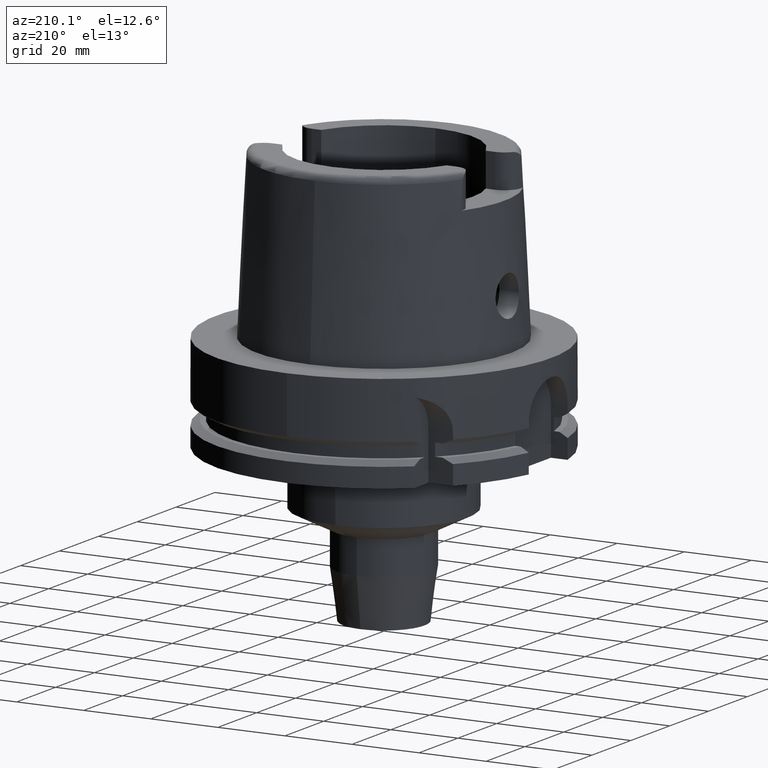
[diagram: clean part render]
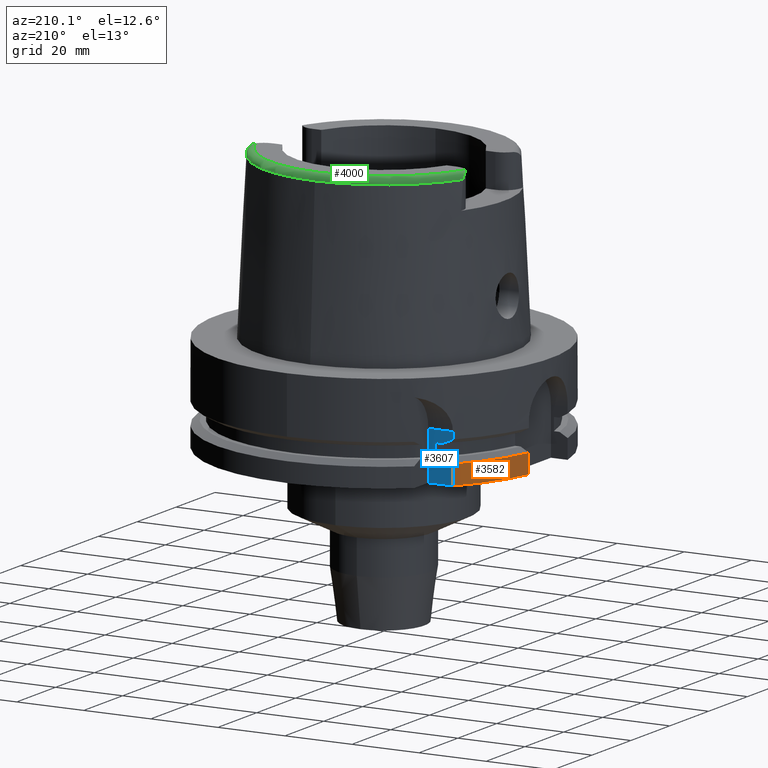
[diagram: same view with three faces highlighted in distinct colors, each labeled with its STEP entity id]
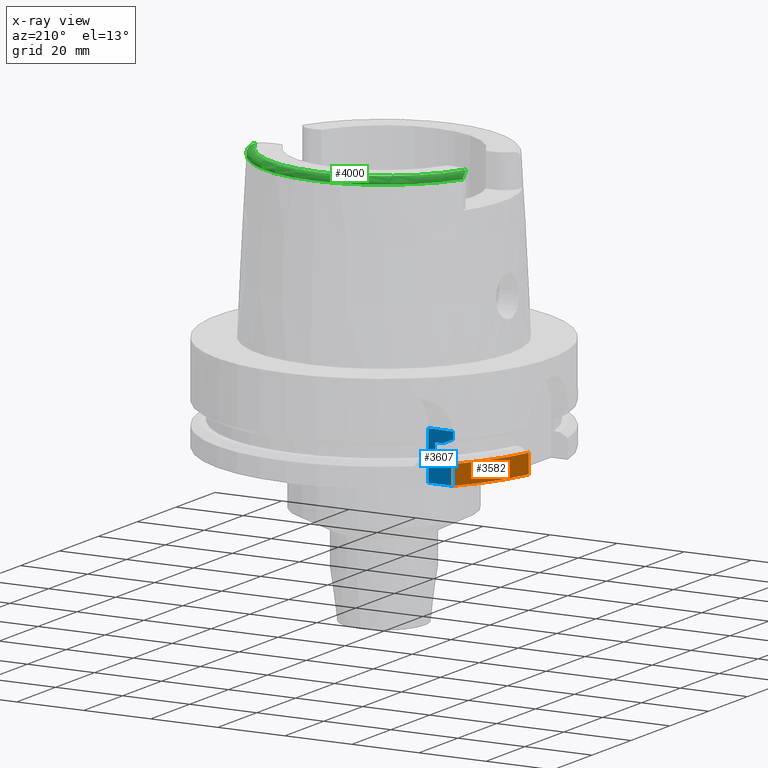
[diagram: x-ray of the same camera — body ghosted, the three highlighted faces saturated]
A machine part, auxiliary view with three faces highlighted in distinct colors.
The next image is the same camera in x-ray (body ghosted, the three faces saturated) — at least one of them is partly hidden behind the body in this view.
Their STEP definitions:

[orange] entity #3582 — the highlighted cylindrical surface (partial cylindrical patch) has radius 50 mm, axis along (0, 0, 1).
#1160=CARTESIAN_POINT('',(0.E0,0.E0,-2.9E1));
#1161=DIRECTION('',(0.E0,0.E0,1.E0));
#1162=DIRECTION('',(-7.765951326142E-1,6.3E-1,0.E0));
#1163=AXIS2_PLACEMENT_3D('',#1160,#1161,#1162);
#1413=DIRECTION('',(-1.164835666500E-7,-1.435883620959E-7,1.E0));
#1414=VECTOR('',#1413,5.752407739009E0);
#1415=CARTESIAN_POINT('',(-3.882975663071E1,3.15E1,-2.9E1));
#1416=LINE('',#1415,#1414);
#1420=DIRECTION('',(-8.399427413532E-14,0.E0,-1.E0));
#1421=VECTOR('',#1420,5.752404735809E0);
#1422=CARTESIAN_POINT('',(-4.898979485566E1,1.E1,-2.324759526419E1));
#1423=LINE('',#1422,#1421);
#2084=CARTESIAN_POINT('',(0.E0,0.E0,-2.324759526419E1));
#2085=DIRECTION('',(0.E0,0.E0,-1.E0));
#2086=DIRECTION('',(-9.797958971133E-1,2.E-1,0.E0));
#2087=AXIS2_PLACEMENT_3D('',#2084,#2085,#2086);
#2353=CARTESIAN_POINT('',(-3.882975663071E1,3.15E1,-2.9E1));
#2354=VERTEX_POINT('',#2353);
#2355=CARTESIAN_POINT('',(-4.898979485566E1,1.E1,-2.9E1));
#2356=VERTEX_POINT('',#2355);
#2399=CARTESIAN_POINT('',(-3.882975730077E1,3.149999917402E1,
-2.324759226099E1));
#2400=VERTEX_POINT('',#2399);
#2401=CARTESIAN_POINT('',(-4.898979485566E1,1.E1,-2.324759526419E1));
#2402=VERTEX_POINT('',#2401);
#3569=CARTESIAN_POINT('',(0.E0,0.E0,-8.125E1));
#3570=DIRECTION('',(0.E0,0.E0,1.E0));
#3571=DIRECTION('',(0.E0,1.E0,0.E0));
#3572=AXIS2_PLACEMENT_3D('',#3569,#3570,#3571);
#3573=CYLINDRICAL_SURFACE('',#3572,5.E1);
#3575=ORIENTED_EDGE('',*,*,#3574,.T.);
#3577=ORIENTED_EDGE('',*,*,#3576,.F.);
#3578=ORIENTED_EDGE('',*,*,#3549,.T.);
#3579=ORIENTED_EDGE('',*,*,#3341,.F.);
#3580=EDGE_LOOP('',(#3575,#3577,#3578,#3579));
#3581=FACE_OUTER_BOUND('',#3580,.F.);
#1164=CIRCLE('',#1163,5.E1);
#2088=CIRCLE('',#2087,5.E1);
#3341=EDGE_CURVE('',#2354,#2356,#1164,.T.);
#3549=EDGE_CURVE('',#2402,#2356,#1423,.T.);
#3574=EDGE_CURVE('',#2354,#2400,#1416,.T.);
#3576=EDGE_CURVE('',#2402,#2400,#2088,.T.);
#3582=ADVANCED_FACE('',(#3581),#3573,.T.);

[blue] entity #3607 — the highlighted planar face has unit normal (0, -1, 0).
#1153=DIRECTION('',(-1.E0,-4.798503851106E-14,0.E0));
#1154=VECTOR('',#1153,7.329756630709E0);
#1155=CARTESIAN_POINT('',(-3.15E1,3.15E1,-2.9E1));
#1156=LINE('',#1155,#1154);
#1413=DIRECTION('',(-1.164835666500E-7,-1.435883620959E-7,1.E0));
#1414=VECTOR('',#1413,5.752407739009E0);
#1415=CARTESIAN_POINT('',(-3.882975663071E1,3.15E1,-2.9E1));
#1416=LINE('',#1415,#1414);
#1427=DIRECTION('',(0.E0,0.E0,1.E0));
#1428=VECTOR('',#1427,1.436484140846E1);
#1429=CARTESIAN_POINT('',(-3.15E1,3.15E1,-2.9E1));
#1430=LINE('',#1429,#1428);
#1434=CARTESIAN_POINT('',(-3.882975730068E1,3.149999917413E1,
-1.675240773890E1));
#1435=CARTESIAN_POINT('',(-3.848478757235E1,3.149999917413E1,
-1.690708093013E1));
#1436=CARTESIAN_POINT('',(-3.779426518057E1,3.149999990405E1,
-1.721512476499E1));
#1437=CARTESIAN_POINT('',(-3.675645002481E1,3.150000157462E1,
-1.767260061493E1));
#1438=CARTESIAN_POINT('',(-3.606333280798E1,3.149999638985E1,
-1.797479206983E1));
#1439=CARTESIAN_POINT('',(-3.571643728548E1,3.149999638985E1,-1.8125E1));
#1444=DIRECTION('',(-9.999999999986E-1,-1.645545284965E-6,-9.229692154412E-14));
#1445=VECTOR('',#1444,2.194056706375E0);
#1446=CARTESIAN_POINT('',(-3.352238058372E1,3.15E1,-2.1875E1));
#1447=LINE('',#1446,#1445);
#1451=DIRECTION('',(9.999999718471E-1,4.798503716013E-14,2.372885901153E-4));
#1452=VECTOR('',#1451,7.329756837064E0);
#1453=CARTESIAN_POINT('',(-3.882975663071E1,3.15E1,-1.463689785921E1));
#1454=LINE('',#1453,#1452);
#1486=DIRECTION('',(3.166955095345E-7,3.903884141555E-7,9.999999999999E-1));
#1487=VECTOR('',#1486,2.115509879686E0);
#1488=CARTESIAN_POINT('',(-3.882975730068E1,3.149999917413E1,
-1.675240773890E1));
#1489=LINE('',#1488,#1487);
#2004=DIRECTION('',(-9.999999999986E-1,-1.645424013511E-6,9.391616597936E-14));
#2005=VECTOR('',#2004,2.194056701758E0);
#2006=CARTESIAN_POINT('',(-3.352238058372E1,3.15E1,-1.8125E1));
#2007=LINE('',#2006,#2005);
#2027=DIRECTION('',(0.E0,0.E0,1.E0));
#2028=VECTOR('',#2027,3.75E0);
#2029=CARTESIAN_POINT('',(-3.352238058372E1,3.15E1,-2.1875E1));
#2030=LINE('',#2029,#2028);
#2064=CARTESIAN_POINT('',(-3.882975730077E1,3.149999917402E1,
-2.324759226099E1));
#2065=CARTESIAN_POINT('',(-3.847938208946E1,3.149999917402E1,
-2.309049542723E1));
#2066=CARTESIAN_POINT('',(-3.778160767086E1,3.149999990407E1,
-2.277932002534E1));
#2067=CARTESIAN_POINT('',(-3.674383152977E1,3.150000157473E1,
-2.232175692976E1));
#2068=CARTESIAN_POINT('',(-3.605789694349E1,3.149999638958E1,
-2.202285416486E1));
#2069=CARTESIAN_POINT('',(-3.571643729009E1,3.149999638958E1,-2.1875E1));
#2349=CARTESIAN_POINT('',(-3.15E1,3.15E1,-2.9E1));
#2351=VERTEX_POINT('',#2349);
#2353=CARTESIAN_POINT('',(-3.882975663071E1,3.15E1,-2.9E1));
#2354=VERTEX_POINT('',#2353);
#2387=CARTESIAN_POINT('',(-3.15E1,3.150000136127E1,-1.463168005692E1));
#2388=VERTEX_POINT('',#2387);
#2399=CARTESIAN_POINT('',(-3.882975730077E1,3.149999917402E1,
-2.324759226099E1));
#2400=VERTEX_POINT('',#2399);
#2437=VERTEX_POINT('',#2069);
#2446=CARTESIAN_POINT('',(-3.352238058372E1,3.15E1,-2.1875E1));
#2447=VERTEX_POINT('',#2446);
#2456=CARTESIAN_POINT('',(-3.352238058372E1,3.15E1,-1.8125E1));
#2457=VERTEX_POINT('',#2456);
#2466=CARTESIAN_POINT('',(-3.571643728548E1,3.149999638985E1,-1.8125E1));
#2467=VERTEX_POINT('',#2466);
#2475=VERTEX_POINT('',#1434);
#2480=CARTESIAN_POINT('',(-3.882975663071E1,3.15E1,-1.463689785921E1));
#2481=VERTEX_POINT('',#2480);
#3583=CARTESIAN_POINT('',(-3.15E1,3.15E1,-1.463689785921E1));
#3584=DIRECTION('',(0.E0,-1.E0,0.E0));
#3585=DIRECTION('',(0.E0,0.E0,-1.E0));
#3586=AXIS2_PLACEMENT_3D('',#3583,#3584,#3585);
#3587=PLANE('',#3586);
#3588=ORIENTED_EDGE('',*,*,#3339,.F.);
#3589=ORIENTED_EDGE('',*,*,#3392,.T.);
#3591=ORIENTED_EDGE('',*,*,#3590,.F.);
#3593=ORIENTED_EDGE('',*,*,#3592,.F.);
#3595=ORIENTED_EDGE('',*,*,#3594,.T.);
#3597=ORIENTED_EDGE('',*,*,#3596,.F.);
#3599=ORIENTED_EDGE('',*,*,#3598,.F.);
#3601=ORIENTED_EDGE('',*,*,#3600,.T.);
#3603=ORIENTED_EDGE('',*,*,#3602,.F.);
#3604=ORIENTED_EDGE('',*,*,#3574,.F.);
#3605=EDGE_LOOP('',(#3588,#3589,#3591,#3593,#3595,#3597,#3599,#3601,#3603,
#3604));
#3606=FACE_OUTER_BOUND('',#3605,.F.);
#1440=B_SPLINE_CURVE_WITH_KNOTS('',3,(#1434,#1435,#1436,#1437,#1438,#1439),
.UNSPECIFIED.,.F.,.F.,(4,1,1,4),(0.E0,3.333333333333E-1,6.666666666667E-1,1.E0),
.UNSPECIFIED.);
#2070=B_SPLINE_CURVE_WITH_KNOTS('',3,(#2064,#2065,#2066,#2067,#2068,#2069),
.UNSPECIFIED.,.F.,.F.,(4,1,1,4),(0.E0,3.333333333333E-1,6.666666666667E-1,1.E0),
.UNSPECIFIED.);
#3339=EDGE_CURVE('',#2351,#2354,#1156,.T.);
#3392=EDGE_CURVE('',#2351,#2388,#1430,.T.);
#3574=EDGE_CURVE('',#2354,#2400,#1416,.T.);
#3590=EDGE_CURVE('',#2481,#2388,#1454,.T.);
#3592=EDGE_CURVE('',#2475,#2481,#1489,.T.);
#3594=EDGE_CURVE('',#2475,#2467,#1440,.T.);
#3596=EDGE_CURVE('',#2457,#2467,#2007,.T.);
#3598=EDGE_CURVE('',#2447,#2457,#2030,.T.);
#3600=EDGE_CURVE('',#2447,#2437,#1447,.T.);
#3602=EDGE_CURVE('',#2400,#2437,#2070,.T.);
#3607=ADVANCED_FACE('',(#3606),#3587,.F.);

[green] entity #4000 — the highlighted toroidal blend (fillet) surface has major radius 33.5974 mm and minor (blend) radius 2 mm.
#26=CARTESIAN_POINT('',(0.E0,0.E0,5.E1));
#27=DIRECTION('',(0.E0,0.E0,-1.E0));
#28=DIRECTION('',(-9.332215253018E-1,3.593015233942E-1,0.E0));
#29=AXIS2_PLACEMENT_3D('',#26,#27,#28);
#2113=CARTESIAN_POINT('',(-3.135385269249E1,1.207161079257E1,5.E1));
#2114=CARTESIAN_POINT('',(-3.142230523049E1,1.216836990132E1,5.E1));
#2115=CARTESIAN_POINT('',(-3.156028047479E1,1.237780455610E1,4.998583930300E1));
#2116=CARTESIAN_POINT('',(-3.176658097472E1,1.275688183189E1,4.990718900862E1));
#2117=CARTESIAN_POINT('',(-3.194166100541E1,1.316410385653E1,4.977085383933E1));
#2118=CARTESIAN_POINT('',(-3.207440801952E1,1.357122313998E1,4.958852042645E1));
#2119=CARTESIAN_POINT('',(-3.216183367430E1,1.394477840039E1,4.938020266058E1));
#2120=CARTESIAN_POINT('',(-3.221148882635E1,1.425653720422E1,4.917135686499E1));
#2121=CARTESIAN_POINT('',(-3.223746939821E1,1.451514282799E1,4.896514658487E1));
#2122=CARTESIAN_POINT('',(-3.224854907287E1,1.472784604484E1,4.875904743269E1));
#2123=CARTESIAN_POINT('',(-3.225E1,1.484138752557E1,4.861780666987E1));
#2124=CARTESIAN_POINT('',(-3.225E1,1.489E1,4.854599893822E1));
#2129=CARTESIAN_POINT('',(-3.225E1,1.489E1,4.854599893822E1));
#2130=CARTESIAN_POINT('',(-3.225E1,1.492408728896E1,4.849564702902E1));
#2131=CARTESIAN_POINT('',(-3.225000018245E1,1.498188648662E1,4.839508007841E1));
#2132=CARTESIAN_POINT('',(-3.224999936141E1,1.503955324746E1,4.824376683850E1));
#2133=CARTESIAN_POINT('',(-3.225000136841E1,1.505883628822E1,4.814728423050E1));
#2134=CARTESIAN_POINT('',(-3.225000136841E1,1.506443226195E1,4.809991939277E1));
#2139=CARTESIAN_POINT('',(0.E0,0.E0,4.809987853799E1));
#2140=DIRECTION('',(0.E0,0.E0,-1.E0));
#2141=DIRECTION('',(-9.060276961631E-1,4.232183996300E-1,0.E0));
#2142=AXIS2_PLACEMENT_3D('',#2139,#2140,#2141);
#2147=CARTESIAN_POINT('',(0.E0,0.E0,4.809987853799E1));
#2148=DIRECTION('',(0.E0,0.E0,-1.E0));
#2149=DIRECTION('',(0.E0,1.E0,0.E0));
#2150=AXIS2_PLACEMENT_3D('',#2147,#2148,#2149);
#2155=CARTESIAN_POINT('',(3.224998031234E1,1.506460283713E1,4.809931474878E1));
#2156=CARTESIAN_POINT('',(3.224998031234E1,1.505858362002E1,4.815026195747E1));
#2157=CARTESIAN_POINT('',(3.225000918757E1,1.503785288228E1,4.824971161874E1));
#2158=CARTESIAN_POINT('',(3.224999737498E1,1.497923817941E1,4.840024949121E1));
#2159=CARTESIAN_POINT('',(3.225E1,1.492270464737E1,4.849768939279E1));
#2160=CARTESIAN_POINT('',(3.225E1,1.489E1,4.854599893822E1));
#2165=CARTESIAN_POINT('',(3.225E1,1.489E1,4.854599893822E1));
#2166=CARTESIAN_POINT('',(3.225E1,1.484133504002E1,4.861788419870E1));
#2167=CARTESIAN_POINT('',(3.224853727531E1,1.472777242622E1,4.875906342999E1));
#2168=CARTESIAN_POINT('',(3.223753960543E1,1.451631294576E1,4.896406471439E1));
#2169=CARTESIAN_POINT('',(3.221172273387E1,1.425833605726E1,4.917006097160E1));
#2170=CARTESIAN_POINT('',(3.216206780947E1,1.394576306724E1,4.937966243737E1));
#2171=CARTESIAN_POINT('',(3.207424249596E1,1.357052088571E1,4.958890910882E1));
#2172=CARTESIAN_POINT('',(3.194121937949E1,1.316284488701E1,4.977138188235E1));
#2173=CARTESIAN_POINT('',(3.176525177443E1,1.275399894165E1,4.990805908125E1));
#2174=CARTESIAN_POINT('',(3.155810188322E1,1.237423235572E1,4.998630548689E1));
#2175=CARTESIAN_POINT('',(3.142128650261E1,1.216692990795E1,5.E1));
#2176=CARTESIAN_POINT('',(3.135385269249E1,1.207161079257E1,5.E1));
#2182=CARTESIAN_POINT('',(-3.135385269249E1,1.207161079257E1,5.E1));
#2184=VERTEX_POINT('',#2182);
#2185=CARTESIAN_POINT('',(3.135385269249E1,1.207161079257E1,5.E1));
#2186=VERTEX_POINT('',#2185);
#2213=CARTESIAN_POINT('',(-3.225E1,1.489E1,4.854599893822E1));
#2214=VERTEX_POINT('',#2213);
#2232=VERTEX_POINT('',#2134);
#2233=CARTESIAN_POINT('',(0.E0,3.559494289391E1,4.809987853799E1));
#2234=VERTEX_POINT('',#2233);
#2235=CARTESIAN_POINT('',(3.224994093704E1,1.506456999646E1,4.809987853799E1));
#2236=VERTEX_POINT('',#2235);
#2237=VERTEX_POINT('',#2160);
#3984=CARTESIAN_POINT('',(0.E0,0.E0,4.8E1));
#3985=DIRECTION('',(0.E0,0.E0,1.E0));
#3986=DIRECTION('',(-4.184165975220E-4,-9.999999124638E-1,0.E0));
#3987=AXIS2_PLACEMENT_3D('',#3984,#3985,#3986);
#3988=TOROIDAL_SURFACE('',#3987,3.359743838136E1,2.E0);
#3989=ORIENTED_EDGE('',*,*,#2531,.T.);
#3991=ORIENTED_EDGE('',*,*,#3990,.T.);
#3992=ORIENTED_EDGE('',*,*,#2689,.T.);
#3993=ORIENTED_EDGE('',*,*,#2711,.T.);
#3995=ORIENTED_EDGE('',*,*,#3994,.T.);
#3996=ORIENTED_EDGE('',*,*,#3975,.T.);
#3997=ORIENTED_EDGE('',*,*,#2504,.F.);
#3998=EDGE_LOOP('',(#3989,#3991,#3992,#3993,#3995,#3996,#3997));
#3999=FACE_OUTER_BOUND('',#3998,.F.);
#30=CIRCLE('',#29,3.359743838136E1);
#2125=B_SPLINE_CURVE_WITH_KNOTS('',3,(#2113,#2114,#2115,#2116,#2117,#2118,#2119,
#2120,#2121,#2122,#2123,#2124),.UNSPECIFIED.,.F.,.F.,(4,1,1,1,1,1,1,1,1,4),
(0.E0,1.111111111111E-1,2.222222222222E-1,3.333333333333E-1,4.444444444444E-1,
5.555555555556E-1,6.666666666667E-1,7.777777777778E-1,8.888888888889E-1,1.E0),
.UNSPECIFIED.);
#2135=B_SPLINE_CURVE_WITH_KNOTS('',3,(#2129,#2130,#2131,#2132,#2133,#2134),
.UNSPECIFIED.,.F.,.F.,(4,1,1,4),(0.E0,3.333333333333E-1,6.666666666667E-1,1.E0),
.UNSPECIFIED.);
#2143=CIRCLE('',#2142,3.559494289391E1);
#2151=CIRCLE('',#2150,3.559494289391E1);
#2161=B_SPLINE_CURVE_WITH_KNOTS('',3,(#2155,#2156,#2157,#2158,#2159,#2160),
.UNSPECIFIED.,.F.,.F.,(4,1,1,4),(0.E0,3.333333333333E-1,6.666666666667E-1,1.E0),
.UNSPECIFIED.);
#2177=B_SPLINE_CURVE_WITH_KNOTS('',3,(#2165,#2166,#2167,#2168,#2169,#2170,#2171,
#2172,#2173,#2174,#2175,#2176),.UNSPECIFIED.,.F.,.F.,(4,1,1,1,1,1,1,1,1,4),
(0.E0,1.111111111111E-1,2.222222222222E-1,3.333333333333E-1,4.444444444444E-1,
5.555555555556E-1,6.666666666667E-1,7.777777777778E-1,8.888888888889E-1,1.E0),
.UNSPECIFIED.);
#2504=EDGE_CURVE('',#2184,#2186,#30,.T.);
#2531=EDGE_CURVE('',#2184,#2214,#2125,.T.);
#2689=EDGE_CURVE('',#2232,#2234,#2143,.T.);
#2711=EDGE_CURVE('',#2234,#2236,#2151,.T.);
#3975=EDGE_CURVE('',#2237,#2186,#2177,.T.);
#3990=EDGE_CURVE('',#2214,#2232,#2135,.T.);
#3994=EDGE_CURVE('',#2236,#2237,#2161,.T.);
#4000=ADVANCED_FACE('',(#3999),#3988,.T.);